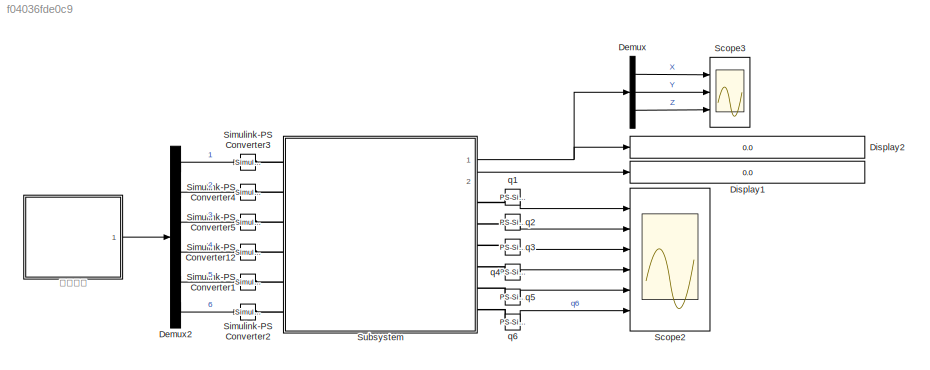
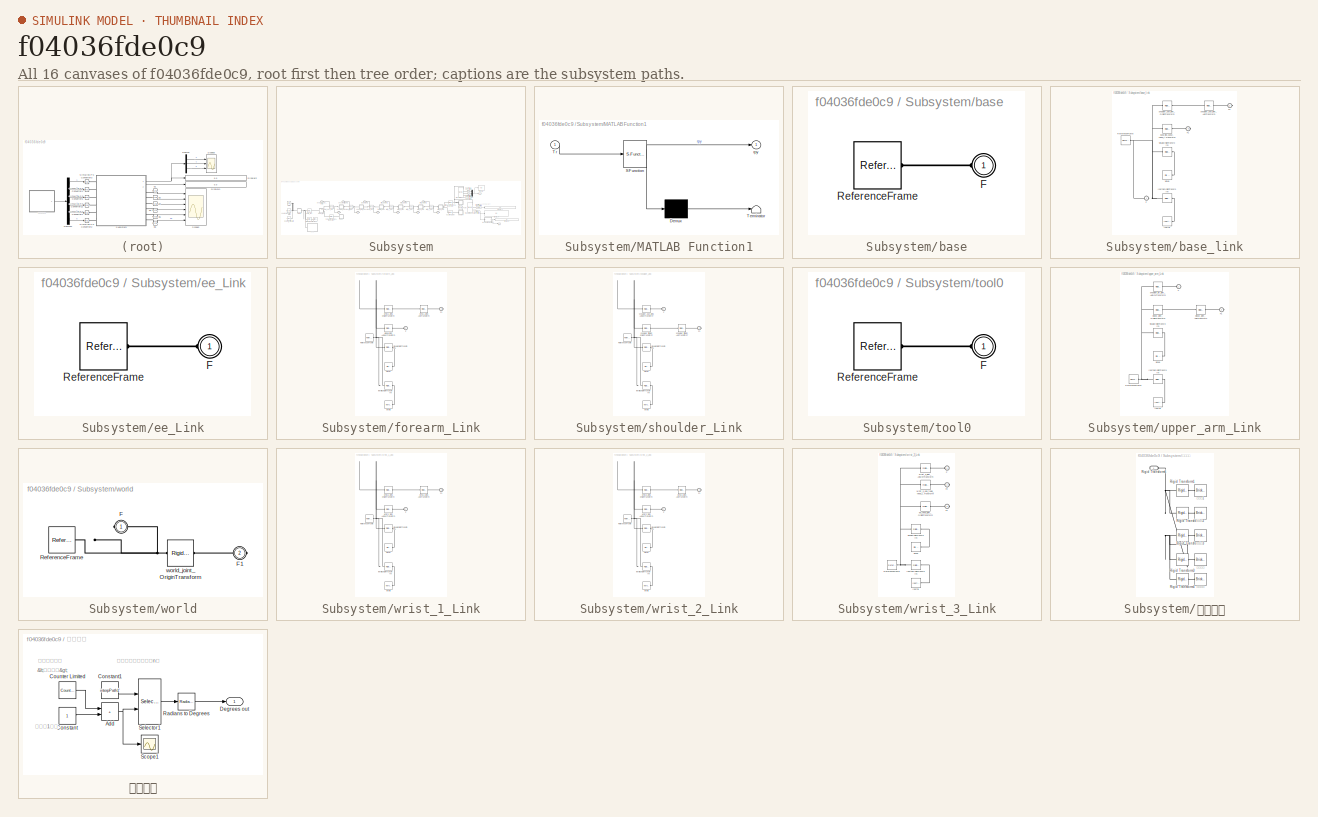
[diagram: thumbnail index - all 16 canvases of the model, root first then tree order]
MODEL slx_f04036fde0c9
KIND model
CONFIG AbsTol = auto
CONFIG EnableMultiTasking = off
CONFIG FixedStep = auto
CONFIG MaxStep = auto
CONFIG MinStep = auto
CONFIG RelTol = 1e-3
CONFIG SampleTimeConstraint = Unconstrained
CONFIG SolverName = VariableStepAuto
CONFIG StartTime = 0.0
CONFIG StopTime = 100
BLOCK [Demux] Demux
  Outputs = 3
  Ports = [1, 3]
BLOCK [Demux] Demux2
  Outputs = 6
  Ports = [1, 6]
BLOCK [Display] Display1
  Decimation = 1
  Format = bank
  Ports = [1]
BLOCK [Display] Display2
  Decimation = 1
  Format = bank
  Ports = [1]
BLOCK [Scope] Scope2
  Floating = off
  NumInputPorts = 6
  Ports = [6]
  ScopeSpecificationString = Simulink.scopes.TimeScopeBlockCfg('CurrentConfiguration', extmgr.ConfigurationSet(extmgr.Configuration('Core','General UI',true),extmgr.Configuration('Core','Source UI',true),extmgr.Configuration('Sources','WiredSimulink',true,'DataLoggingVariableName','ScopeData1'),extmgr.Configuration('Visuals','Time Domain',true,'SerializedDisplays',{struct('MinYLimReal','-175.51527','MaxYLimReal','164.04343','...<+1459ch>
BLOCK [Scope] Scope3
  Floating = off
  NumInputPorts = 3
  Ports = [3]
  ScopeSpecificationString = Simulink.scopes.TimeScopeBlockCfg('CurrentConfiguration', extmgr.ConfigurationSet(extmgr.Configuration('Core','General UI',true),extmgr.Configuration('Core','Source UI',true),extmgr.Configuration('Sources','WiredSimulink',true,'DataLoggingVariableName','ScopeData1'),extmgr.Configuration('Visuals','Time Domain',true,'SerializedDisplays',{struct('MinYLimReal','-398.09495','MaxYLimReal','919.23277','...<+1484ch>
BLOCK [Reference] Simulink-PS Converter1  REF=nesl_utility/Simulink-PS
Converter
  Ports = [1, 0, 0, 0, 0, 0, 1]
  SourceBlock = nesl_utility/Simulink-PS\nConverter
  SourceProductBaseCode = SS
  SourceType = Simulink-PS\nConverter
BLOCK [Reference] Simulink-PS Converter12  REF=nesl_utility/Simulink-PS
Converter
  Ports = [1, 0, 0, 0, 0, 0, 1]
  SourceBlock = nesl_utility/Simulink-PS\nConverter
  SourceProductBaseCode = SS
  SourceType = Simulink-PS\nConverter
BLOCK [Reference] Simulink-PS Converter2  REF=nesl_utility/Simulink-PS
Converter
  Ports = [1, 0, 0, 0, 0, 0, 1]
  SourceBlock = nesl_utility/Simulink-PS\nConverter
  SourceProductBaseCode = SS
  SourceType = Simulink-PS\nConverter
BLOCK [Reference] Simulink-PS Converter3  REF=nesl_utility/Simulink-PS
Converter
  Ports = [1, 0, 0, 0, 0, 0, 1]
  SourceBlock = nesl_utility/Simulink-PS\nConverter
  SourceProductBaseCode = SS
  SourceType = Simulink-PS\nConverter
BLOCK [Reference] Simulink-PS Converter4  REF=nesl_utility/Simulink-PS
Converter
  Ports = [1, 0, 0, 0, 0, 0, 1]
  SourceBlock = nesl_utility/Simulink-PS\nConverter
  SourceProductBaseCode = SS
  SourceType = Simulink-PS\nConverter
BLOCK [Reference] Simulink-PS Converter5  REF=nesl_utility/Simulink-PS
Converter
  Ports = [1, 0, 0, 0, 0, 0, 1]
  SourceBlock = nesl_utility/Simulink-PS\nConverter
  SourceProductBaseCode = SS
  SourceType = Simulink-PS\nConverter
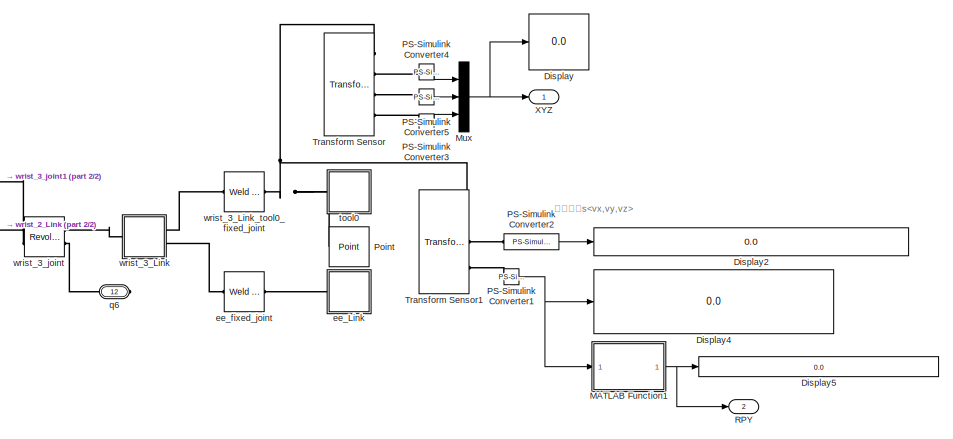
[diagram: Subsystem - part 1/2, right side, full height]
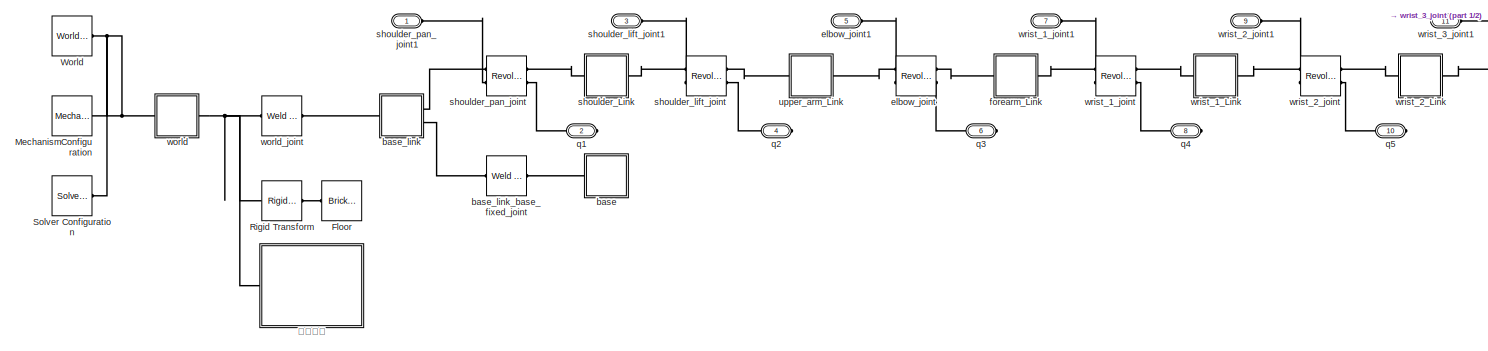
[diagram: Subsystem - part 2/2, middle left region]
BLOCK [SubSystem] Subsystem
  Ports = [0, 2, 0, 0, 0, 6, 6]
  RequestExecContextInheritance = off
BLOCK [Display] Subsystem/Display
  Decimation = 1
  Format = bank
  Ports = [1]
BLOCK [Display] Subsystem/Display2
  Decimation = 1
  Format = bank
  Ports = [1]
BLOCK [Display] Subsystem/Display4
  Decimation = 1
  Format = bank
  Ports = [1]
BLOCK [Display] Subsystem/Display5
  Decimation = 1
  Format = bank
  Ports = [1]
BLOCK [Reference] Subsystem/Floor  REF=sm_lib/Body Elements/Brick Solid
  NameLocation = top
  Ports = [0, 0, 0, 0, 0, 0, 1]
  SourceBlock = sm_lib/Body Elements/Brick Solid
  SourceProductBaseCode = MS
  SourceType = Brick Solid
BLOCK [SubSystem] Subsystem/MATLAB Function1
  ErrorFcn = Stateflow.Translate.translate
  PermitHierarchicalResolution = ExplicitOnly
  Ports = [1, 1]
  RequestExecContextInheritance = off
  SFBlockType = MATLAB Function
  TreatAsAtomicUnit = on
BLOCK [Demux] Subsystem/MATLAB Function1/ Demux 
  Outputs = 1
  Ports = [1, 1]
BLOCK [S-Function] Subsystem/MATLAB Function1/ SFunction 
  EnableBusSupport = on
  FunctionName = sf_sfun
  PortCounts = [1 2]
  Ports = [1, 2]
  SFcnIsStateOwnerBlock = off
  SFunctionDeploymentMode = off
  Tag = Stateflow S-Function 2
BLOCK [Terminator] Subsystem/MATLAB Function1/ Terminator 
BLOCK [Inport] Subsystem/MATLAB Function1/Tr
BLOCK [Outport] Subsystem/MATLAB Function1/rpy
BLOCK [Reference] Subsystem/MechanismConfiguration  REF=sm_lib/Utilities/Mechanism
Configuration
  Ports = [0, 0, 0, 0, 0, 0, 1]
  SourceBlock = sm_lib/Utilities/Mechanism\nConfiguration
  SourceProductBaseCode = MS
  SourceType = Mechanism\nConfiguration
BLOCK [Mux] Subsystem/Mux
  DisplayOption = bar
  Inputs = 3
  Ports = [3, 1]
BLOCK [Reference] Subsystem/PS-Simulink Converter1  REF=nesl_utility/PS-Simulink
Converter
  Ports = [0, 1, 0, 0, 0, 1]
  SourceBlock = nesl_utility/PS-Simulink\nConverter
  SourceProductBaseCode = SS
  SourceType = PS-Simulink\nConverter
BLOCK [Reference] Subsystem/PS-Simulink Converter2  REF=nesl_utility/PS-Simulink
Converter
  Ports = [0, 1, 0, 0, 0, 1]
  SourceBlock = nesl_utility/PS-Simulink\nConverter
  SourceProductBaseCode = SS
  SourceType = PS-Simulink\nConverter
BLOCK [Reference] Subsystem/PS-Simulink Converter3  REF=nesl_utility/PS-Simulink
Converter
  Ports = [0, 1, 0, 0, 0, 1]
  SourceBlock = nesl_utility/PS-Simulink\nConverter
  SourceProductBaseCode = SS
  SourceType = PS-Simulink\nConverter
BLOCK [Reference] Subsystem/PS-Simulink Converter4  REF=nesl_utility/PS-Simulink
Converter
  Ports = [0, 1, 0, 0, 0, 1]
  SourceBlock = nesl_utility/PS-Simulink\nConverter
  SourceProductBaseCode = SS
  SourceType = PS-Simulink\nConverter
BLOCK [Reference] Subsystem/PS-Simulink Converter5  REF=nesl_utility/PS-Simulink
Converter
  Ports = [0, 1, 0, 0, 0, 1]
  SourceBlock = nesl_utility/PS-Simulink\nConverter
  SourceProductBaseCode = SS
  SourceType = PS-Simulink\nConverter
BLOCK [Reference] Subsystem/Point  REF=sm_lib/Curves and Surfaces/Point
  Ports = [0, 0, 0, 0, 0, 1, 1]
  SourceBlock = sm_lib/Curves and Surfaces/Point
  SourceProductBaseCode = MS
  SourceType = Point
BLOCK [Outport] Subsystem/RPY
  Port = 2
BLOCK [Reference] Subsystem/Rigid Transform  REF=sm_lib/Frames and
Transforms/Rigid
Transform
  Ports = [0, 0, 0, 0, 0, 1, 1]
  SourceBlock = sm_lib/Frames and\nTransforms/Rigid\nTransform
  SourceProductBaseCode = MS
  SourceType = Rigid\nTransform
BLOCK [Reference] Subsystem/Solver Configuration  REF=nesl_utility/Solver
Configuration
  Ports = [0, 0, 0, 0, 0, 0, 1]
  SourceBlock = nesl_utility/Solver\nConfiguration
  SourceProductBaseCode = SS
  SourceType = Solver\nConfiguration
BLOCK [Reference] Subsystem/Transform Sensor  REF=sm_lib/Frames and
Transforms/Transform
Sensor
  Ports = [0, 0, 0, 0, 0, 1, 4]
  SourceBlock = sm_lib/Frames and\nTransforms/Transform\nSensor
  SourceProductBaseCode = MS
  SourceType = Transform\nSensor
BLOCK [Reference] Subsystem/Transform Sensor1  REF=sm_lib/Frames and
Transforms/Transform
Sensor
  Ports = [0, 0, 0, 0, 0, 1, 3]
  SourceBlock = sm_lib/Frames and\nTransforms/Transform\nSensor
  SourceProductBaseCode = MS
  SourceType = Transform\nSensor
BLOCK [Reference] Subsystem/World  REF=sm_lib/Frames and
Transforms/World Frame
  Ports = [0, 0, 0, 0, 0, 0, 1]
  SourceBlock = sm_lib/Frames and\nTransforms/World Frame
  SourceProductBaseCode = MS
  SourceType = World Frame
BLOCK [Outport] Subsystem/XYZ 
  VectorParamsAs1DForOutWhenUnconnected = off
BLOCK [SubSystem] Subsystem/base
  Ports = [0, 0, 0, 0, 0, 1]
  RequestExecContextInheritance = off
BLOCK [PMIOPort] Subsystem/base/F
  Side = Left
BLOCK [Reference] Subsystem/base/ReferenceFrame  REF=sm_lib/Frames and
Transforms/Reference
Frame
  Ports = [0, 0, 0, 0, 0, 0, 1]
  SourceBlock = sm_lib/Frames and\nTransforms/Reference\nFrame
  SourceProductBaseCode = MS
  SourceType = Reference\nFrame
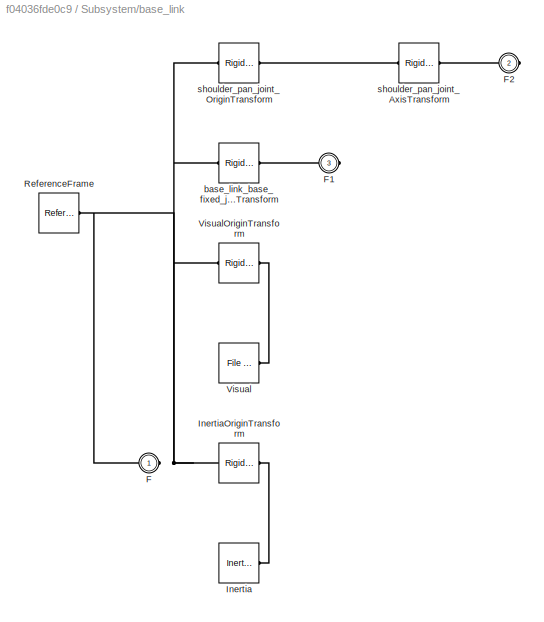
BLOCK [SubSystem] Subsystem/base_link
  Ports = [0, 0, 0, 0, 0, 1, 2]
  RequestExecContextInheritance = off
BLOCK [PMIOPort] Subsystem/base_link/F
  Side = Left
BLOCK [PMIOPort] Subsystem/base_link/F1
  Port = 3
  Side = Right
BLOCK [PMIOPort] Subsystem/base_link/F2
  Port = 2
  Side = Right
BLOCK [Reference] Subsystem/base_link/Inertia  REF=sm_lib/Body Elements/Inertia
  Ports = [0, 0, 0, 0, 0, 0, 1]
  SourceBlock = sm_lib/Body Elements/Inertia
  SourceProductBaseCode = MS
  SourceType = Inertia
BLOCK [Reference] Subsystem/base_link/InertiaOriginTransform  REF=sm_lib/Frames and
Transforms/Rigid
Transform
  Ports = [0, 0, 0, 0, 0, 1, 1]
  SourceBlock = sm_lib/Frames and\nTransforms/Rigid\nTransform
  SourceProductBaseCode = MS
  SourceType = Rigid\nTransform
BLOCK [Reference] Subsystem/base_link/ReferenceFrame  REF=sm_lib/Frames and
Transforms/Reference
Frame
  Ports = [0, 0, 0, 0, 0, 0, 1]
  SourceBlock = sm_lib/Frames and\nTransforms/Reference\nFrame
  SourceProductBaseCode = MS
  SourceType = Reference\nFrame
BLOCK [Reference] Subsystem/base_link/Visual  REF=sm_lib/Body Elements/File Solid
  Ports = [0, 0, 0, 0, 0, 0, 1]
  SourceBlock = sm_lib/Body Elements/File Solid
  SourceProductBaseCode = MS
  SourceType = File Solid
BLOCK [Reference] Subsystem/base_link/VisualOriginTransform  REF=sm_lib/Frames and
Transforms/Rigid
Transform
  Ports = [0, 0, 0, 0, 0, 1, 1]
  SourceBlock = sm_lib/Frames and\nTransforms/Rigid\nTransform
  SourceProductBaseCode = MS
  SourceType = Rigid\nTransform
BLOCK [Reference] Subsystem/base_link/base_link_base_fixed_joint_OriginTransform  REF=sm_lib/Frames and
Transforms/Rigid
Transform
  Ports = [0, 0, 0, 0, 0, 1, 1]
  SourceBlock = sm_lib/Frames and\nTransforms/Rigid\nTransform
  SourceProductBaseCode = MS
  SourceType = Rigid\nTransform
BLOCK [Reference] Subsystem/base_link/shoulder_pan_joint_AxisTransform  REF=sm_lib/Frames and
Transforms/Rigid
Transform
  Ports = [0, 0, 0, 0, 0, 1, 1]
  SourceBlock = sm_lib/Frames and\nTransforms/Rigid\nTransform
  SourceProductBaseCode = MS
  SourceType = Rigid\nTransform
BLOCK [Reference] Subsystem/base_link/shoulder_pan_joint_OriginTransform  REF=sm_lib/Frames and
Transforms/Rigid
Transform
  Ports = [0, 0, 0, 0, 0, 1, 1]
  SourceBlock = sm_lib/Frames and\nTransforms/Rigid\nTransform
  SourceProductBaseCode = MS
  SourceType = Rigid\nTransform
BLOCK [Reference] Subsystem/base_link_base_fixed_joint  REF=sm_lib/Joints/Weld Joint
  Ports = [0, 0, 0, 0, 0, 1, 1]
  SourceBlock = sm_lib/Joints/Weld Joint
  SourceProductBaseCode = MS
  SourceType = Weld Joint
BLOCK [SubSystem] Subsystem/ee_Link
  Ports = [0, 0, 0, 0, 0, 1]
  RequestExecContextInheritance = off
BLOCK [PMIOPort] Subsystem/ee_Link/F
  Side = Left
BLOCK [Reference] Subsystem/ee_Link/ReferenceFrame  REF=sm_lib/Frames and
Transforms/Reference
Frame
  Ports = [0, 0, 0, 0, 0, 0, 1]
  SourceBlock = sm_lib/Frames and\nTransforms/Reference\nFrame
  SourceProductBaseCode = MS
  SourceType = Reference\nFrame
BLOCK [Reference] Subsystem/ee_fixed_joint  REF=sm_lib/Joints/Weld Joint
  Ports = [0, 0, 0, 0, 0, 1, 1]
  SourceBlock = sm_lib/Joints/Weld Joint
  SourceProductBaseCode = MS
  SourceType = Weld Joint
BLOCK [Reference] Subsystem/elbow_joint  REF=sm_lib/Joints/Revolute Joint
  Ports = [0, 0, 0, 0, 0, 2, 2]
  SourceBlock = sm_lib/Joints/Revolute Joint
  SourceProductBaseCode = MS
  SourceType = Revolute Joint
BLOCK [PMIOPort] Subsystem/elbow_joint1
  Port = 5
  Side = Left
BLOCK [SubSystem] Subsystem/forearm_Link
  Ports = [0, 0, 0, 0, 0, 1, 1]
  RequestExecContextInheritance = off
BLOCK [PMIOPort] Subsystem/forearm_Link/F
  Side = Left
BLOCK [PMIOPort] Subsystem/forearm_Link/F1
  Port = 2
  Side = Right
BLOCK [Reference] Subsystem/forearm_Link/Inertia  REF=sm_lib/Body Elements/Inertia
  Ports = [0, 0, 0, 0, 0, 0, 1]
  SourceBlock = sm_lib/Body Elements/Inertia
  SourceProductBaseCode = MS
  SourceType = Inertia
BLOCK [Reference] Subsystem/forearm_Link/InertiaOriginTransform  REF=sm_lib/Frames and
Transforms/Rigid
Transform
  Ports = [0, 0, 0, 0, 0, 1, 1]
  SourceBlock = sm_lib/Frames and\nTransforms/Rigid\nTransform
  SourceProductBaseCode = MS
  SourceType = Rigid\nTransform
BLOCK [Reference] Subsystem/forearm_Link/ReferenceFrame  REF=sm_lib/Frames and
Transforms/Reference
Frame
  Ports = [0, 0, 0, 0, 0, 0, 1]
  SourceBlock = sm_lib/Frames and\nTransforms/Reference\nFrame
  SourceProductBaseCode = MS
  SourceType = Reference\nFrame
BLOCK [Reference] Subsystem/forearm_Link/Visual  REF=sm_lib/Body Elements/File Solid
  Ports = [0, 0, 0, 0, 0, 0, 1]
  SourceBlock = sm_lib/Body Elements/File Solid
  SourceProductBaseCode = MS
  SourceType = File Solid
BLOCK [Reference] Subsystem/forearm_Link/VisualOriginTransform  REF=sm_lib/Frames and
Transforms/Rigid
Transform
  Ports = [0, 0, 0, 0, 0, 1, 1]
  SourceBlock = sm_lib/Frames and\nTransforms/Rigid\nTransform
  SourceProductBaseCode = MS
  SourceType = Rigid\nTransform
BLOCK [Reference] Subsystem/forearm_Link/elbow_joint_AxisInvTransform  REF=sm_lib/Frames and
Transforms/Rigid
Transform
  Ports = [0, 0, 0, 0, 0, 1, 1]
  SourceBlock = sm_lib/Frames and\nTransforms/Rigid\nTransform
  SourceProductBaseCode = MS
  SourceType = Rigid\nTransform
BLOCK [Reference] Subsystem/forearm_Link/wrist_1_joint_AxisTransform  REF=sm_lib/Frames and
Transforms/Rigid
Transform
  Ports = [0, 0, 0, 0, 0, 1, 1]
  SourceBlock = sm_lib/Frames and\nTransforms/Rigid\nTransform
  SourceProductBaseCode = MS
  SourceType = Rigid\nTransform
BLOCK [Reference] Subsystem/forearm_Link/wrist_1_joint_OriginTransform  REF=sm_lib/Frames and
Transforms/Rigid
Transform
  Ports = [0, 0, 0, 0, 0, 1, 1]
  SourceBlock = sm_lib/Frames and\nTransforms/Rigid\nTransform
  SourceProductBaseCode = MS
  SourceType = Rigid\nTransform
BLOCK [PMIOPort] Subsystem/q1
  Port = 2
  Side = Right
BLOCK [PMIOPort] Subsystem/q2
  Port = 4
  Side = Right
BLOCK [PMIOPort] Subsystem/q3
  Port = 6
  Side = Right
BLOCK [PMIOPort] Subsystem/q4
  Port = 8
  Side = Right
BLOCK [PMIOPort] Subsystem/q5
  Port = 10
  Side = Right
BLOCK [PMIOPort] Subsystem/q6
  Port = 12
  Side = Right
BLOCK [SubSystem] Subsystem/shoulder_Link
  Ports = [0, 0, 0, 0, 0, 1, 1]
  RequestExecContextInheritance = off
BLOCK [PMIOPort] Subsystem/shoulder_Link/F
  Side = Left
BLOCK [PMIOPort] Subsystem/shoulder_Link/F1
  Port = 2
  Side = Right
BLOCK [Reference] Subsystem/shoulder_Link/Inertia  REF=sm_lib/Body Elements/Inertia
  Ports = [0, 0, 0, 0, 0, 0, 1]
  SourceBlock = sm_lib/Body Elements/Inertia
  SourceProductBaseCode = MS
  SourceType = Inertia
BLOCK [Reference] Subsystem/shoulder_Link/InertiaOriginTransform  REF=sm_lib/Frames and
Transforms/Rigid
Transform
  Ports = [0, 0, 0, 0, 0, 1, 1]
  SourceBlock = sm_lib/Frames and\nTransforms/Rigid\nTransform
  SourceProductBaseCode = MS
  SourceType = Rigid\nTransform
BLOCK [Reference] Subsystem/shoulder_Link/ReferenceFrame  REF=sm_lib/Frames and
Transforms/Reference
Frame
  Ports = [0, 0, 0, 0, 0, 0, 1]
  SourceBlock = sm_lib/Frames and\nTransforms/Reference\nFrame
  SourceProductBaseCode = MS
  SourceType = Reference\nFrame
BLOCK [Reference] Subsystem/shoulder_Link/Visual  REF=sm_lib/Body Elements/File Solid
  Ports = [0, 0, 0, 0, 0, 0, 1]
  SourceBlock = sm_lib/Body Elements/File Solid
  SourceProductBaseCode = MS
  SourceType = File Solid
BLOCK [Reference] Subsystem/shoulder_Link/VisualOriginTransform  REF=sm_lib/Frames and
Transforms/Rigid
Transform
  Ports = [0, 0, 0, 0, 0, 1, 1]
  SourceBlock = sm_lib/Frames and\nTransforms/Rigid\nTransform
  SourceProductBaseCode = MS
  SourceType = Rigid\nTransform
BLOCK [Reference] Subsystem/shoulder_Link/shoulder_lift_joint_AxisTransform  REF=sm_lib/Frames and
Transforms/Rigid
Transform
  Ports = [0, 0, 0, 0, 0, 1, 1]
  SourceBlock = sm_lib/Frames and\nTransforms/Rigid\nTransform
  SourceProductBaseCode = MS
  SourceType = Rigid\nTransform
BLOCK [Reference] Subsystem/shoulder_Link/shoulder_lift_joint_OriginTransform  REF=sm_lib/Frames and
Transforms/Rigid
Transform
  Ports = [0, 0, 0, 0, 0, 1, 1]
  SourceBlock = sm_lib/Frames and\nTransforms/Rigid\nTransform
  SourceProductBaseCode = MS
  SourceType = Rigid\nTransform
BLOCK [Reference] Subsystem/shoulder_Link/shoulder_pan_joint_AxisInvTransform  REF=sm_lib/Frames and
Transforms/Rigid
Transform
  Ports = [0, 0, 0, 0, 0, 1, 1]
  SourceBlock = sm_lib/Frames and\nTransforms/Rigid\nTransform
  SourceProductBaseCode = MS
  SourceType = Rigid\nTransform
BLOCK [Reference] Subsystem/shoulder_lift_joint  REF=sm_lib/Joints/Revolute Joint
  Ports = [0, 0, 0, 0, 0, 2, 2]
  SourceBlock = sm_lib/Joints/Revolute Joint
  SourceProductBaseCode = MS
  SourceType = Revolute Joint
BLOCK [PMIOPort] Subsystem/shoulder_lift_joint1
  Port = 3
  Side = Left
BLOCK [Reference] Subsystem/shoulder_pan_joint  REF=sm_lib/Joints/Revolute Joint
  Ports = [0, 0, 0, 0, 0, 2, 2]
  SourceBlock = sm_lib/Joints/Revolute Joint
  SourceProductBaseCode = MS
  SourceType = Revolute Joint
BLOCK [PMIOPort] Subsystem/shoulder_pan_joint1
  Side = Left
BLOCK [SubSystem] Subsystem/tool0
  Ports = [0, 0, 0, 0, 0, 1]
  RequestExecContextInheritance = off
BLOCK [PMIOPort] Subsystem/tool0/F
  Side = Left
BLOCK [Reference] Subsystem/tool0/ReferenceFrame  REF=sm_lib/Frames and
Transforms/Reference
Frame
  Ports = [0, 0, 0, 0, 0, 0, 1]
  SourceBlock = sm_lib/Frames and\nTransforms/Reference\nFrame
  SourceProductBaseCode = MS
  SourceType = Reference\nFrame
BLOCK [SubSystem] Subsystem/upper_arm_Link
  Ports = [0, 0, 0, 0, 0, 1, 1]
  RequestExecContextInheritance = off
BLOCK [PMIOPort] Subsystem/upper_arm_Link/F
  Side = Left
BLOCK [PMIOPort] Subsystem/upper_arm_Link/F1
  Port = 2
  Side = Right
BLOCK [Reference] Subsystem/upper_arm_Link/Inertia  REF=sm_lib/Body Elements/Inertia
  Ports = [0, 0, 0, 0, 0, 0, 1]
  SourceBlock = sm_lib/Body Elements/Inertia
  SourceProductBaseCode = MS
  SourceType = Inertia
BLOCK [Reference] Subsystem/upper_arm_Link/InertiaOriginTransform  REF=sm_lib/Frames and
Transforms/Rigid
Transform
  Ports = [0, 0, 0, 0, 0, 1, 1]
  SourceBlock = sm_lib/Frames and\nTransforms/Rigid\nTransform
  SourceProductBaseCode = MS
  SourceType = Rigid\nTransform
BLOCK [Reference] Subsystem/upper_arm_Link/ReferenceFrame  REF=sm_lib/Frames and
Transforms/Reference
Frame
  Ports = [0, 0, 0, 0, 0, 0, 1]
  SourceBlock = sm_lib/Frames and\nTransforms/Reference\nFrame
  SourceProductBaseCode = MS
  SourceType = Reference\nFrame
BLOCK [Reference] Subsystem/upper_arm_Link/Visual  REF=sm_lib/Body Elements/File Solid
  Ports = [0, 0, 0, 0, 0, 0, 1]
  SourceBlock = sm_lib/Body Elements/File Solid
  SourceProductBaseCode = MS
  SourceType = File Solid
BLOCK [Reference] Subsystem/upper_arm_Link/VisualOriginTransform  REF=sm_lib/Frames and
Transforms/Rigid
Transform
  Ports = [0, 0, 0, 0, 0, 1, 1]
  SourceBlock = sm_lib/Frames and\nTransforms/Rigid\nTransform
  SourceProductBaseCode = MS
  SourceType = Rigid\nTransform
BLOCK [Reference] Subsystem/upper_arm_Link/elbow_joint_AxisTransform  REF=sm_lib/Frames and
Transforms/Rigid
Transform
  Ports = [0, 0, 0, 0, 0, 1, 1]
  SourceBlock = sm_lib/Frames and\nTransforms/Rigid\nTransform
  SourceProductBaseCode = MS
  SourceType = Rigid\nTransform
BLOCK [Reference] Subsystem/upper_arm_Link/elbow_joint_OriginTransform  REF=sm_lib/Frames and
Transforms/Rigid
Transform
  Ports = [0, 0, 0, 0, 0, 1, 1]
  SourceBlock = sm_lib/Frames and\nTransforms/Rigid\nTransform
  SourceProductBaseCode = MS
  SourceType = Rigid\nTransform
BLOCK [Reference] Subsystem/upper_arm_Link/shoulder_lift_joint_AxisInvTransform  REF=sm_lib/Frames and
Transforms/Rigid
Transform
  Ports = [0, 0, 0, 0, 0, 1, 1]
  SourceBlock = sm_lib/Frames and\nTransforms/Rigid\nTransform
  SourceProductBaseCode = MS
  SourceType = Rigid\nTransform
BLOCK [SubSystem] Subsystem/world
  Ports = [0, 0, 0, 0, 0, 1, 1]
  RequestExecContextInheritance = off
BLOCK [PMIOPort] Subsystem/world/F
  Side = Left
BLOCK [PMIOPort] Subsystem/world/F1
  Port = 2
  Side = Right
BLOCK [Reference] Subsystem/world/ReferenceFrame  REF=sm_lib/Frames and
Transforms/Reference
Frame
  Ports = [0, 0, 0, 0, 0, 0, 1]
  SourceBlock = sm_lib/Frames and\nTransforms/Reference\nFrame
  SourceProductBaseCode = MS
  SourceType = Reference\nFrame
BLOCK [Reference] Subsystem/world/world_joint_OriginTransform  REF=sm_lib/Frames and
Transforms/Rigid
Transform
  Ports = [0, 0, 0, 0, 0, 1, 1]
  SourceBlock = sm_lib/Frames and\nTransforms/Rigid\nTransform
  SourceProductBaseCode = MS
  SourceType = Rigid\nTransform
BLOCK [Reference] Subsystem/world_joint  REF=sm_lib/Joints/Weld Joint
  Ports = [0, 0, 0, 0, 0, 1, 1]
  SourceBlock = sm_lib/Joints/Weld Joint
  SourceProductBaseCode = MS
  SourceType = Weld Joint
BLOCK [SubSystem] Subsystem/wrist_1_Link
  Ports = [0, 0, 0, 0, 0, 1, 1]
  RequestExecContextInheritance = off
BLOCK [PMIOPort] Subsystem/wrist_1_Link/F
  Side = Left
BLOCK [PMIOPort] Subsystem/wrist_1_Link/F1
  Port = 2
  Side = Right
BLOCK [Reference] Subsystem/wrist_1_Link/Inertia  REF=sm_lib/Body Elements/Inertia
  Ports = [0, 0, 0, 0, 0, 0, 1]
  SourceBlock = sm_lib/Body Elements/Inertia
  SourceProductBaseCode = MS
  SourceType = Inertia
BLOCK [Reference] Subsystem/wrist_1_Link/InertiaOriginTransform  REF=sm_lib/Frames and
Transforms/Rigid
Transform
  Ports = [0, 0, 0, 0, 0, 1, 1]
  SourceBlock = sm_lib/Frames and\nTransforms/Rigid\nTransform
  SourceProductBaseCode = MS
  SourceType = Rigid\nTransform
BLOCK [Reference] Subsystem/wrist_1_Link/ReferenceFrame  REF=sm_lib/Frames and
Transforms/Reference
Frame
  Ports = [0, 0, 0, 0, 0, 0, 1]
  SourceBlock = sm_lib/Frames and\nTransforms/Reference\nFrame
  SourceProductBaseCode = MS
  SourceType = Reference\nFrame
BLOCK [Reference] Subsystem/wrist_1_Link/Visual  REF=sm_lib/Body Elements/File Solid
  Ports = [0, 0, 0, 0, 0, 0, 1]
  SourceBlock = sm_lib/Body Elements/File Solid
  SourceProductBaseCode = MS
  SourceType = File Solid
BLOCK [Reference] Subsystem/wrist_1_Link/VisualOriginTransform  REF=sm_lib/Frames and
Transforms/Rigid
Transform
  Ports = [0, 0, 0, 0, 0, 1, 1]
  SourceBlock = sm_lib/Frames and\nTransforms/Rigid\nTransform
  SourceProductBaseCode = MS
  SourceType = Rigid\nTransform
BLOCK [Reference] Subsystem/wrist_1_Link/wrist_1_joint_AxisInvTransform  REF=sm_lib/Frames and
Transforms/Rigid
Transform
  Ports = [0, 0, 0, 0, 0, 1, 1]
  SourceBlock = sm_lib/Frames and\nTransforms/Rigid\nTransform
  SourceProductBaseCode = MS
  SourceType = Rigid\nTransform
BLOCK [Reference] Subsystem/wrist_1_Link/wrist_2_joint_AxisTransform  REF=sm_lib/Frames and
Transforms/Rigid
Transform
  Ports = [0, 0, 0, 0, 0, 1, 1]
  SourceBlock = sm_lib/Frames and\nTransforms/Rigid\nTransform
  SourceProductBaseCode = MS
  SourceType = Rigid\nTransform
BLOCK [Reference] Subsystem/wrist_1_Link/wrist_2_joint_OriginTransform  REF=sm_lib/Frames and
Transforms/Rigid
Transform
  Ports = [0, 0, 0, 0, 0, 1, 1]
  SourceBlock = sm_lib/Frames and\nTransforms/Rigid\nTransform
  SourceProductBaseCode = MS
  SourceType = Rigid\nTransform
BLOCK [Reference] Subsystem/wrist_1_joint  REF=sm_lib/Joints/Revolute Joint
  Ports = [0, 0, 0, 0, 0, 2, 2]
  SourceBlock = sm_lib/Joints/Revolute Joint
  SourceProductBaseCode = MS
  SourceType = Revolute Joint
BLOCK [PMIOPort] Subsystem/wrist_1_joint1
  Port = 7
  Side = Left
BLOCK [SubSystem] Subsystem/wrist_2_Link
  Ports = [0, 0, 0, 0, 0, 1, 1]
  RequestExecContextInheritance = off
BLOCK [PMIOPort] Subsystem/wrist_2_Link/F
  Side = Left
BLOCK [PMIOPort] Subsystem/wrist_2_Link/F1
  Port = 2
  Side = Right
BLOCK [Reference] Subsystem/wrist_2_Link/Inertia  REF=sm_lib/Body Elements/Inertia
  Ports = [0, 0, 0, 0, 0, 0, 1]
  SourceBlock = sm_lib/Body Elements/Inertia
  SourceProductBaseCode = MS
  SourceType = Inertia
BLOCK [Reference] Subsystem/wrist_2_Link/InertiaOriginTransform  REF=sm_lib/Frames and
Transforms/Rigid
Transform
  Ports = [0, 0, 0, 0, 0, 1, 1]
  SourceBlock = sm_lib/Frames and\nTransforms/Rigid\nTransform
  SourceProductBaseCode = MS
  SourceType = Rigid\nTransform
BLOCK [Reference] Subsystem/wrist_2_Link/ReferenceFrame  REF=sm_lib/Frames and
Transforms/Reference
Frame
  Ports = [0, 0, 0, 0, 0, 0, 1]
  SourceBlock = sm_lib/Frames and\nTransforms/Reference\nFrame
  SourceProductBaseCode = MS
  SourceType = Reference\nFrame
BLOCK [Reference] Subsystem/wrist_2_Link/Visual  REF=sm_lib/Body Elements/File Solid
  Ports = [0, 0, 0, 0, 0, 0, 1]
  SourceBlock = sm_lib/Body Elements/File Solid
  SourceProductBaseCode = MS
  SourceType = File Solid
BLOCK [Reference] Subsystem/wrist_2_Link/VisualOriginTransform  REF=sm_lib/Frames and
Transforms/Rigid
Transform
  Ports = [0, 0, 0, 0, 0, 1, 1]
  SourceBlock = sm_lib/Frames and\nTransforms/Rigid\nTransform
  SourceProductBaseCode = MS
  SourceType = Rigid\nTransform
BLOCK [Reference] Subsystem/wrist_2_Link/wrist_2_joint_AxisInvTransform  REF=sm_lib/Frames and
Transforms/Rigid
Transform
  Ports = [0, 0, 0, 0, 0, 1, 1]
  SourceBlock = sm_lib/Frames and\nTransforms/Rigid\nTransform
  SourceProductBaseCode = MS
  SourceType = Rigid\nTransform
BLOCK [Reference] Subsystem/wrist_2_Link/wrist_3_joint_AxisTransform  REF=sm_lib/Frames and
Transforms/Rigid
Transform
  Ports = [0, 0, 0, 0, 0, 1, 1]
  SourceBlock = sm_lib/Frames and\nTransforms/Rigid\nTransform
  SourceProductBaseCode = MS
  SourceType = Rigid\nTransform
BLOCK [Reference] Subsystem/wrist_2_Link/wrist_3_joint_OriginTransform  REF=sm_lib/Frames and
Transforms/Rigid
Transform
  Ports = [0, 0, 0, 0, 0, 1, 1]
  SourceBlock = sm_lib/Frames and\nTransforms/Rigid\nTransform
  SourceProductBaseCode = MS
  SourceType = Rigid\nTransform
BLOCK [Reference] Subsystem/wrist_2_joint  REF=sm_lib/Joints/Revolute Joint
  Ports = [0, 0, 0, 0, 0, 2, 2]
  SourceBlock = sm_lib/Joints/Revolute Joint
  SourceProductBaseCode = MS
  SourceType = Revolute Joint
BLOCK [PMIOPort] Subsystem/wrist_2_joint1
  Port = 9
  Side = Left
BLOCK [SubSystem] Subsystem/wrist_3_Link
  Ports = [0, 0, 0, 0, 0, 1, 2]
  RequestExecContextInheritance = off
BLOCK [PMIOPort] Subsystem/wrist_3_Link/F
  Side = Left
BLOCK [PMIOPort] Subsystem/wrist_3_Link/F1
  Port = 3
  Side = Right
BLOCK [PMIOPort] Subsystem/wrist_3_Link/F2
  Port = 2
  Side = Right
BLOCK [Reference] Subsystem/wrist_3_Link/Inertia  REF=sm_lib/Body Elements/Inertia
  Ports = [0, 0, 0, 0, 0, 0, 1]
  SourceBlock = sm_lib/Body Elements/Inertia
  SourceProductBaseCode = MS
  SourceType = Inertia
BLOCK [Reference] Subsystem/wrist_3_Link/InertiaOriginTransform  REF=sm_lib/Frames and
Transforms/Rigid
Transform
  Ports = [0, 0, 0, 0, 0, 1, 1]
  SourceBlock = sm_lib/Frames and\nTransforms/Rigid\nTransform
  SourceProductBaseCode = MS
  SourceType = Rigid\nTransform
BLOCK [Reference] Subsystem/wrist_3_Link/ReferenceFrame  REF=sm_lib/Frames and
Transforms/Reference
Frame
  Ports = [0, 0, 0, 0, 0, 0, 1]
  SourceBlock = sm_lib/Frames and\nTransforms/Reference\nFrame
  SourceProductBaseCode = MS
  SourceType = Reference\nFrame
BLOCK [Reference] Subsystem/wrist_3_Link/Visual  REF=sm_lib/Body Elements/File Solid
  Ports = [0, 0, 0, 0, 0, 0, 1]
  SourceBlock = sm_lib/Body Elements/File Solid
  SourceProductBaseCode = MS
  SourceType = File Solid
BLOCK [Reference] Subsystem/wrist_3_Link/VisualOriginTransform  REF=sm_lib/Frames and
Transforms/Rigid
Transform
  Ports = [0, 0, 0, 0, 0, 1, 1]
  SourceBlock = sm_lib/Frames and\nTransforms/Rigid\nTransform
  SourceProductBaseCode = MS
  SourceType = Rigid\nTransform
BLOCK [Reference] Subsystem/wrist_3_Link/ee_fixed_joint_OriginTransform  REF=sm_lib/Frames and
Transforms/Rigid
Transform
  Ports = [0, 0, 0, 0, 0, 1, 1]
  SourceBlock = sm_lib/Frames and\nTransforms/Rigid\nTransform
  SourceProductBaseCode = MS
  SourceType = Rigid\nTransform
BLOCK [Reference] Subsystem/wrist_3_Link/wrist_3_Link_tool0_fixed_joint_OriginTransform  REF=sm_lib/Frames and
Transforms/Rigid
Transform
  Ports = [0, 0, 0, 0, 0, 1, 1]
  SourceBlock = sm_lib/Frames and\nTransforms/Rigid\nTransform
  SourceProductBaseCode = MS
  SourceType = Rigid\nTransform
BLOCK [Reference] Subsystem/wrist_3_Link/wrist_3_joint_AxisInvTransform  REF=sm_lib/Frames and
Transforms/Rigid
Transform
  Ports = [0, 0, 0, 0, 0, 1, 1]
  SourceBlock = sm_lib/Frames and\nTransforms/Rigid\nTransform
  SourceProductBaseCode = MS
  SourceType = Rigid\nTransform
BLOCK [Reference] Subsystem/wrist_3_Link_tool0_fixed_joint  REF=sm_lib/Joints/Weld Joint
  Ports = [0, 0, 0, 0, 0, 1, 1]
  SourceBlock = sm_lib/Joints/Weld Joint
  SourceProductBaseCode = MS
  SourceType = Weld Joint
BLOCK [Reference] Subsystem/wrist_3_joint  REF=sm_lib/Joints/Revolute Joint
  Ports = [0, 0, 0, 0, 0, 2, 2]
  SourceBlock = sm_lib/Joints/Revolute Joint
  SourceProductBaseCode = MS
  SourceType = Revolute Joint
BLOCK [PMIOPort] Subsystem/wrist_3_joint1
  Port = 11
  Side = Left
BLOCK [SubSystem] Subsystem/空间物体
  Ports = [0, 0, 0, 0, 0, 1]
  RequestExecContextInheritance = off
BLOCK [Reference] Subsystem/空间物体/Rigid Transform1  REF=sm_lib/Frames and
Transforms/Rigid
Transform
  Ports = [0, 0, 0, 0, 0, 1, 1]
  SourceBlock = sm_lib/Frames and\nTransforms/Rigid\nTransform
  SourceProductBaseCode = MS
  SourceType = Rigid\nTransform
BLOCK [Reference] Subsystem/空间物体/Rigid Transform2  REF=sm_lib/Frames and
Transforms/Rigid
Transform
  Ports = [0, 0, 0, 0, 0, 1, 1]
  SourceBlock = sm_lib/Frames and\nTransforms/Rigid\nTransform
  SourceProductBaseCode = MS
  SourceType = Rigid\nTransform
BLOCK [Reference] Subsystem/空间物体/Rigid Transform3  REF=sm_lib/Frames and
Transforms/Rigid
Transform
  Ports = [0, 0, 0, 0, 0, 1, 1]
  SourceBlock = sm_lib/Frames and\nTransforms/Rigid\nTransform
  SourceProductBaseCode = MS
  SourceType = Rigid\nTransform
BLOCK [Reference] Subsystem/空间物体/Rigid Transform4  REF=sm_lib/Frames and
Transforms/Rigid
Transform
  Ports = [0, 0, 0, 0, 0, 1, 1]
  SourceBlock = sm_lib/Frames and\nTransforms/Rigid\nTransform
  SourceProductBaseCode = MS
  SourceType = Rigid\nTransform
BLOCK [Reference] Subsystem/空间物体/Rigid Transform5  REF=sm_lib/Frames and
Transforms/Rigid
Transform
  Ports = [0, 0, 0, 0, 0, 1, 1]
  SourceBlock = sm_lib/Frames and\nTransforms/Rigid\nTransform
  SourceProductBaseCode = MS
  SourceType = Rigid\nTransform
BLOCK [PMIOPort] Subsystem/空间物体/Rigid Transform6
  Side = Left
BLOCK [Reference] Subsystem/空间物体/放置物体  REF=sm_lib/Body Elements/Brick Solid
  NameLocation = top
  Ports = [0, 0, 0, 0, 0, 0, 1]
  SourceBlock = sm_lib/Body Elements/Brick Solid
  SourceProductBaseCode = MS
  SourceType = Brick Solid
BLOCK [Reference] Subsystem/空间物体/起始物体  REF=sm_lib/Body Elements/Brick Solid
  NameLocation = top
  Ports = [0, 0, 0, 0, 0, 0, 1]
  SourceBlock = sm_lib/Body Elements/Brick Solid
  SourceProductBaseCode = MS
  SourceType = Brick Solid
BLOCK [Reference] Subsystem/空间物体/障碍物1  REF=sm_lib/Body Elements/Brick Solid
  NameLocation = top
  Ports = [0, 0, 0, 0, 0, 0, 1]
  SourceBlock = sm_lib/Body Elements/Brick Solid
  SourceProductBaseCode = MS
  SourceType = Brick Solid
BLOCK [Reference] Subsystem/空间物体/障碍物2  REF=sm_lib/Body Elements/Brick Solid
  NameLocation = top
  Ports = [0, 0, 0, 0, 0, 0, 1]
  SourceBlock = sm_lib/Body Elements/Brick Solid
  SourceProductBaseCode = MS
  SourceType = Brick Solid
BLOCK [Reference] Subsystem/空间物体/障碍物3  REF=sm_lib/Body Elements/Brick Solid
  NameLocation = top
  Ports = [0, 0, 0, 0, 0, 0, 1]
  SourceBlock = sm_lib/Body Elements/Brick Solid
  SourceProductBaseCode = MS
  SourceType = Brick Solid
BLOCK [Reference] q1  REF=nesl_utility/PS-Simulink
Converter
  NameLocation = right
  Ports = [0, 1, 0, 0, 0, 1]
  SourceBlock = nesl_utility/PS-Simulink\nConverter
  SourceProductBaseCode = SS
  SourceType = PS-Simulink\nConverter
BLOCK [Reference] q2  REF=nesl_utility/PS-Simulink
Converter
  NameLocation = right
  Ports = [0, 1, 0, 0, 0, 1]
  SourceBlock = nesl_utility/PS-Simulink\nConverter
  SourceProductBaseCode = SS
  SourceType = PS-Simulink\nConverter
BLOCK [Reference] q3  REF=nesl_utility/PS-Simulink
Converter
  NameLocation = right
  Ports = [0, 1, 0, 0, 0, 1]
  SourceBlock = nesl_utility/PS-Simulink\nConverter
  SourceProductBaseCode = SS
  SourceType = PS-Simulink\nConverter
BLOCK [Reference] q4  REF=nesl_utility/PS-Simulink
Converter
  NameLocation = right
  Ports = [0, 1, 0, 0, 0, 1]
  SourceBlock = nesl_utility/PS-Simulink\nConverter
  SourceProductBaseCode = SS
  SourceType = PS-Simulink\nConverter
BLOCK [Reference] q5  REF=nesl_utility/PS-Simulink
Converter
  NameLocation = right
  Ports = [0, 1, 0, 0, 0, 1]
  SourceBlock = nesl_utility/PS-Simulink\nConverter
  SourceProductBaseCode = SS
  SourceType = PS-Simulink\nConverter
BLOCK [Reference] q6  REF=nesl_utility/PS-Simulink
Converter
  NameLocation = right
  Ports = [0, 1, 0, 0, 0, 1]
  SourceBlock = nesl_utility/PS-Simulink\nConverter
  SourceProductBaseCode = SS
  SourceType = PS-Simulink\nConverter
BLOCK [SubSystem] 数据提取
  Ports = [0, 1]
  RequestExecContextInheritance = off
BLOCK [Sum] 数据提取/Add
  IconShape = rectangular
  Ports = [2, 1]
BLOCK [Constant] 数据提取/Constant
BLOCK [Constant] 数据提取/Constant1
  Value = interpPath1'
BLOCK [Reference] 数据提取/Counter Limited  REF=simulink/Sources/Counter
Limited
  Ports = [0, 1]
  SourceBlock = simulink/Sources/Counter\nLimited
  SourceProductBaseCode = SL
  SourceType = Counter Limited
BLOCK [Outport] 数据提取/Degrees out
BLOCK [Reference] 数据提取/Radians to Degrees  REF=simulink_extras/Transformations/Radians
to Degrees
  Ports = [1, 1]
  SourceBlock = simulink_extras/Transformations/Radians\nto Degrees
  SourceProductBaseCode = SL
  SourceType = RadiansToDegrees
BLOCK [Scope] 数据提取/Scope1
  Floating = off
  NumInputPorts = 1
  Ports = [1]
  ScopeSpecificationString = Simulink.scopes.TimeScopeBlockCfg('CurrentConfiguration', extmgr.ConfigurationSet(extmgr.Configuration('Core','General UI',true),extmgr.Configuration('Core','Source UI',true),extmgr.Configuration('Sources','WiredSimulink',true,'DataLoggingVariableName','ScopeData2'),extmgr.Configuration('Visuals','Time Domain',true,'SerializedDisplays',{struct('MinYLimReal','-126.5','MaxYLimReal','1148.5','YLabelR...<+1410ch>
BLOCK [Selector] 数据提取/Selector1
  IndexOptions = Select all,Index vector (port)
  Indices = [1 3],1
  InputPortWidth = 3
  NumberOfDimensions = 2
  OutputSizes = 1,1
  Ports = [2, 1]
ANNOTATION Subsystem: 四元数：s
ANNOTATION 数据提取: 保证从1开始
ANNOTATION 数据提取: 轨迹点的总数
ANNOTATION 数据提取: <从零开始>
ANNOTATION 数据提取: 每次从轨迹点提取第n列
LINE Demux2:1 -> Simulink-PS Converter3:1
LINE Demux2:2 -> Simulink-PS Converter4:1
LINE Demux2:3 -> Simulink-PS Converter5:1
LINE Demux2:4 -> Simulink-PS Converter12:1
LINE Demux2:5 -> Simulink-PS Converter1:1
LINE Demux2:6 -> Simulink-PS Converter2:1
LINE Demux:1 -> Scope3:1
LINE Demux:2 -> Scope3:2
LINE Demux:3 -> Scope3:3
NET Subsystem/MATLAB Function1:1 -> Subsystem/Display5:1, Subsystem/RPY:1
NET Subsystem/Mux:1 -> Subsystem/Display:1, Subsystem/XYZ :1
NET Subsystem/PS-Simulink Converter1:1 -> Subsystem/Display4:1, Subsystem/MATLAB Function1:1
LINE Subsystem/PS-Simulink Converter2:1 -> Subsystem/Display2:1
LINE Subsystem/PS-Simulink Converter3:1 -> Subsystem/Mux:3
LINE Subsystem/PS-Simulink Converter4:1 -> Subsystem/Mux:1
LINE Subsystem/PS-Simulink Converter5:1 -> Subsystem/Mux:2
NET Subsystem:1 -> Demux:1, Display2:1
LINE Subsystem:2 -> Display1:1
LINE q1:1 -> Scope2:1
LINE q2:1 -> Scope2:2
LINE q3:1 -> Scope2:3
LINE q4:1 -> Scope2:4
LINE q5:1 -> Scope2:5
LINE q6:1 -> Scope2:6
NET 数据提取/Add:1 -> 数据提取/Scope1:1, 数据提取/Selector1:2
LINE 数据提取/Constant1:1 -> 数据提取/Selector1:1
LINE 数据提取/Constant:1 -> 数据提取/Add:2
LINE 数据提取/Counter Limited:1 -> 数据提取/Add:1
LINE 数据提取/Radians to Degrees:1 -> 数据提取/Degrees out:1
LINE 数据提取/Selector1:1 -> 数据提取/Radians to Degrees:1
LINE 数据提取:1 -> Demux2:1
PLINE Simulink-PS Converter12:RConn1 -- Subsystem:LConn4
PLINE Simulink-PS Converter1:RConn1 -- Subsystem:LConn5
PLINE Simulink-PS Converter2:RConn1 -- Subsystem:LConn6
PLINE Simulink-PS Converter3:RConn1 -- Subsystem:LConn1
PLINE Simulink-PS Converter4:RConn1 -- Subsystem:LConn2
PLINE Simulink-PS Converter5:RConn1 -- Subsystem:LConn3
PLINE Subsystem/Floor:RConn1 -- Subsystem/Rigid Transform:RConn1
PNET net1: Subsystem/MechanismConfiguration:RConn1 -- Subsystem/Solver Configuration:RConn1 -- Subsystem/World:RConn1 -- Subsystem/world:LConn1
PLINE Subsystem/PS-Simulink Converter1:LConn1 -- Subsystem/Transform Sensor1:RConn3
PLINE Subsystem/PS-Simulink Converter2:LConn1 -- Subsystem/Transform Sensor1:RConn2
PLINE Subsystem/PS-Simulink Converter3:LConn1 -- Subsystem/Transform Sensor:RConn4
PLINE Subsystem/PS-Simulink Converter4:LConn1 -- Subsystem/Transform Sensor:RConn2
PLINE Subsystem/PS-Simulink Converter5:LConn1 -- Subsystem/Transform Sensor:RConn3
PNET net2: Subsystem/Point:LConn1 -- Subsystem/Transform Sensor1:RConn1 -- Subsystem/Transform Sensor:RConn1 -- Subsystem/tool0:LConn1 -- Subsystem/wrist_3_Link_tool0_fixed_joint:RConn1
PNET net3: Subsystem/Rigid Transform:LConn1 -- Subsystem/world:RConn1 -- Subsystem/world_joint:LConn1 -- Subsystem/空间物体:LConn1
PLINE Subsystem/base/F:RConn1 -- Subsystem/base/ReferenceFrame:RConn1
PLINE Subsystem/base:LConn1 -- Subsystem/base_link_base_fixed_joint:RConn1
PLINE Subsystem/base_link/F1:RConn1 -- Subsystem/base_link/base_link_base_fixed_joint_OriginTransform:RConn1
PLINE Subsystem/base_link/F2:RConn1 -- Subsystem/base_link/shoulder_pan_joint_AxisTransform:RConn1
PNET net4: Subsystem/base_link/F:RConn1 -- Subsystem/base_link/InertiaOriginTransform:LConn1 -- Subsystem/base_link/ReferenceFrame:RConn1 -- Subsystem/base_link/VisualOriginTransform:LConn1 -- Subsystem/base_link/base_link_base_fixed_joint_OriginTransform:LConn1 -- Subsystem/base_link/shoulder_pan_joint_OriginTransform:LConn1
PLINE Subsystem/base_link/Inertia:RConn1 -- Subsystem/base_link/InertiaOriginTransform:RConn1
PLINE Subsystem/base_link/Visual:RConn1 -- Subsystem/base_link/VisualOriginTransform:RConn1
PLINE Subsystem/base_link/shoulder_pan_joint_AxisTransform:LConn1 -- Subsystem/base_link/shoulder_pan_joint_OriginTransform:RConn1
PLINE Subsystem/base_link:LConn1 -- Subsystem/world_joint:RConn1
PLINE Subsystem/base_link:RConn1 -- Subsystem/shoulder_pan_joint:LConn1
PLINE Subsystem/base_link:RConn2 -- Subsystem/base_link_base_fixed_joint:LConn1
PLINE Subsystem/ee_Link/F:RConn1 -- Subsystem/ee_Link/ReferenceFrame:RConn1
PLINE Subsystem/ee_Link:LConn1 -- Subsystem/ee_fixed_joint:RConn1
PLINE Subsystem/ee_fixed_joint:LConn1 -- Subsystem/wrist_3_Link:RConn2
PLINE Subsystem/elbow_joint1:RConn1 -- Subsystem/elbow_joint:LConn2
PLINE Subsystem/elbow_joint:LConn1 -- Subsystem/upper_arm_Link:RConn1
PLINE Subsystem/elbow_joint:RConn1 -- Subsystem/forearm_Link:LConn1
PLINE Subsystem/elbow_joint:RConn2 -- Subsystem/q3:RConn1
PLINE Subsystem/forearm_Link/F1:RConn1 -- Subsystem/forearm_Link/wrist_1_joint_AxisTransform:RConn1
PLINE Subsystem/forearm_Link/F:RConn1 -- Subsystem/forearm_Link/elbow_joint_AxisInvTransform:RConn1
PLINE Subsystem/forearm_Link/Inertia:RConn1 -- Subsystem/forearm_Link/InertiaOriginTransform:RConn1
PNET net5: Subsystem/forearm_Link/InertiaOriginTransform:LConn1 -- Subsystem/forearm_Link/ReferenceFrame:RConn1 -- Subsystem/forearm_Link/VisualOriginTransform:LConn1 -- Subsystem/forearm_Link/elbow_joint_AxisInvTransform:LConn1 -- Subsystem/forearm_Link/wrist_1_joint_OriginTransform:LConn1
PLINE Subsystem/forearm_Link/Visual:RConn1 -- Subsystem/forearm_Link/VisualOriginTransform:RConn1
PLINE Subsystem/forearm_Link/wrist_1_joint_AxisTransform:LConn1 -- Subsystem/forearm_Link/wrist_1_joint_OriginTransform:RConn1
PLINE Subsystem/forearm_Link:RConn1 -- Subsystem/wrist_1_joint:LConn1
PLINE Subsystem/q1:RConn1 -- Subsystem/shoulder_pan_joint:RConn2
PLINE Subsystem/q2:RConn1 -- Subsystem/shoulder_lift_joint:RConn2
PLINE Subsystem/q4:RConn1 -- Subsystem/wrist_1_joint:RConn2
PLINE Subsystem/q5:RConn1 -- Subsystem/wrist_2_joint:RConn2
PLINE Subsystem/q6:RConn1 -- Subsystem/wrist_3_joint:RConn2
PLINE Subsystem/shoulder_Link/F1:RConn1 -- Subsystem/shoulder_Link/shoulder_lift_joint_AxisTransform:RConn1
PLINE Subsystem/shoulder_Link/F:RConn1 -- Subsystem/shoulder_Link/shoulder_pan_joint_AxisInvTransform:RConn1
PLINE Subsystem/shoulder_Link/Inertia:RConn1 -- Subsystem/shoulder_Link/InertiaOriginTransform:RConn1
PNET net6: Subsystem/shoulder_Link/InertiaOriginTransform:LConn1 -- Subsystem/shoulder_Link/ReferenceFrame:RConn1 -- Subsystem/shoulder_Link/VisualOriginTransform:LConn1 -- Subsystem/shoulder_Link/shoulder_lift_joint_OriginTransform:LConn1 -- Subsystem/shoulder_Link/shoulder_pan_joint_AxisInvTransform:LConn1
PLINE Subsystem/shoulder_Link/Visual:RConn1 -- Subsystem/shoulder_Link/VisualOriginTransform:RConn1
PLINE Subsystem/shoulder_Link/shoulder_lift_joint_AxisTransform:LConn1 -- Subsystem/shoulder_Link/shoulder_lift_joint_OriginTransform:RConn1
PLINE Subsystem/shoulder_Link:LConn1 -- Subsystem/shoulder_pan_joint:RConn1
PLINE Subsystem/shoulder_Link:RConn1 -- Subsystem/shoulder_lift_joint:LConn1
PLINE Subsystem/shoulder_lift_joint1:RConn1 -- Subsystem/shoulder_lift_joint:LConn2
PLINE Subsystem/shoulder_lift_joint:RConn1 -- Subsystem/upper_arm_Link:LConn1
PLINE Subsystem/shoulder_pan_joint1:RConn1 -- Subsystem/shoulder_pan_joint:LConn2
PLINE Subsystem/tool0/F:RConn1 -- Subsystem/tool0/ReferenceFrame:RConn1
PLINE Subsystem/upper_arm_Link/F1:RConn1 -- Subsystem/upper_arm_Link/elbow_joint_AxisTransform:RConn1
PLINE Subsystem/upper_arm_Link/F:RConn1 -- Subsystem/upper_arm_Link/shoulder_lift_joint_AxisInvTransform:RConn1
PLINE Subsystem/upper_arm_Link/Inertia:RConn1 -- Subsystem/upper_arm_Link/InertiaOriginTransform:RConn1
PNET net7: Subsystem/upper_arm_Link/InertiaOriginTransform:LConn1 -- Subsystem/upper_arm_Link/ReferenceFrame:RConn1 -- Subsystem/upper_arm_Link/VisualOriginTransform:LConn1 -- Subsystem/upper_arm_Link/elbow_joint_OriginTransform:LConn1 -- Subsystem/upper_arm_Link/shoulder_lift_joint_AxisInvTransform:LConn1
PLINE Subsystem/upper_arm_Link/Visual:RConn1 -- Subsystem/upper_arm_Link/VisualOriginTransform:RConn1
PLINE Subsystem/upper_arm_Link/elbow_joint_AxisTransform:LConn1 -- Subsystem/upper_arm_Link/elbow_joint_OriginTransform:RConn1
PLINE Subsystem/world/F1:RConn1 -- Subsystem/world/world_joint_OriginTransform:RConn1
PNET net8: Subsystem/world/F:RConn1 -- Subsystem/world/ReferenceFrame:RConn1 -- Subsystem/world/world_joint_OriginTransform:LConn1
PLINE Subsystem/wrist_1_Link/F1:RConn1 -- Subsystem/wrist_1_Link/wrist_2_joint_AxisTransform:RConn1
PLINE Subsystem/wrist_1_Link/F:RConn1 -- Subsystem/wrist_1_Link/wrist_1_joint_AxisInvTransform:RConn1
PLINE Subsystem/wrist_1_Link/Inertia:RConn1 -- Subsystem/wrist_1_Link/InertiaOriginTransform:RConn1
PNET net9: Subsystem/wrist_1_Link/InertiaOriginTransform:LConn1 -- Subsystem/wrist_1_Link/ReferenceFrame:RConn1 -- Subsystem/wrist_1_Link/VisualOriginTransform:LConn1 -- Subsystem/wrist_1_Link/wrist_1_joint_AxisInvTransform:LConn1 -- Subsystem/wrist_1_Link/wrist_2_joint_OriginTransform:LConn1
PLINE Subsystem/wrist_1_Link/Visual:RConn1 -- Subsystem/wrist_1_Link/VisualOriginTransform:RConn1
PLINE Subsystem/wrist_1_Link/wrist_2_joint_AxisTransform:LConn1 -- Subsystem/wrist_1_Link/wrist_2_joint_OriginTransform:RConn1
PLINE Subsystem/wrist_1_Link:LConn1 -- Subsystem/wrist_1_joint:RConn1
PLINE Subsystem/wrist_1_Link:RConn1 -- Subsystem/wrist_2_joint:LConn1
PLINE Subsystem/wrist_1_joint1:RConn1 -- Subsystem/wrist_1_joint:LConn2
PLINE Subsystem/wrist_2_Link/F1:RConn1 -- Subsystem/wrist_2_Link/wrist_3_joint_AxisTransform:RConn1
PLINE Subsystem/wrist_2_Link/F:RConn1 -- Subsystem/wrist_2_Link/wrist_2_joint_AxisInvTransform:RConn1
PLINE Subsystem/wrist_2_Link/Inertia:RConn1 -- Subsystem/wrist_2_Link/InertiaOriginTransform:RConn1
PNET net10: Subsystem/wrist_2_Link/InertiaOriginTransform:LConn1 -- Subsystem/wrist_2_Link/ReferenceFrame:RConn1 -- Subsystem/wrist_2_Link/VisualOriginTransform:LConn1 -- Subsystem/wrist_2_Link/wrist_2_joint_AxisInvTransform:LConn1 -- Subsystem/wrist_2_Link/wrist_3_joint_OriginTransform:LConn1
PLINE Subsystem/wrist_2_Link/Visual:RConn1 -- Subsystem/wrist_2_Link/VisualOriginTransform:RConn1
PLINE Subsystem/wrist_2_Link/wrist_3_joint_AxisTransform:LConn1 -- Subsystem/wrist_2_Link/wrist_3_joint_OriginTransform:RConn1
PLINE Subsystem/wrist_2_Link:LConn1 -- Subsystem/wrist_2_joint:RConn1
PLINE Subsystem/wrist_2_Link:RConn1 -- Subsystem/wrist_3_joint:LConn1
PLINE Subsystem/wrist_2_joint1:RConn1 -- Subsystem/wrist_2_joint:LConn2
PLINE Subsystem/wrist_3_Link/F1:RConn1 -- Subsystem/wrist_3_Link/ee_fixed_joint_OriginTransform:RConn1
PLINE Subsystem/wrist_3_Link/F2:RConn1 -- Subsystem/wrist_3_Link/wrist_3_Link_tool0_fixed_joint_OriginTransform:RConn1
PLINE Subsystem/wrist_3_Link/F:RConn1 -- Subsystem/wrist_3_Link/wrist_3_joint_AxisInvTransform:RConn1
PLINE Subsystem/wrist_3_Link/Inertia:RConn1 -- Subsystem/wrist_3_Link/InertiaOriginTransform:RConn1
PNET net11: Subsystem/wrist_3_Link/InertiaOriginTransform:LConn1 -- Subsystem/wrist_3_Link/ReferenceFrame:RConn1 -- Subsystem/wrist_3_Link/VisualOriginTransform:LConn1 -- Subsystem/wrist_3_Link/ee_fixed_joint_OriginTransform:LConn1 -- Subsystem/wrist_3_Link/wrist_3_Link_tool0_fixed_joint_OriginTransform:LConn1 -- Subsystem/wrist_3_Link/wrist_3_joint_AxisInvTransform:LConn1
PLINE Subsystem/wrist_3_Link/Visual:RConn1 -- Subsystem/wrist_3_Link/VisualOriginTransform:RConn1
PLINE Subsystem/wrist_3_Link:LConn1 -- Subsystem/wrist_3_joint:RConn1
PLINE Subsystem/wrist_3_Link:RConn1 -- Subsystem/wrist_3_Link_tool0_fixed_joint:LConn1
PLINE Subsystem/wrist_3_joint1:RConn1 -- Subsystem/wrist_3_joint:LConn2
PNET net12: Subsystem/空间物体/Rigid Transform1:LConn1 -- Subsystem/空间物体/Rigid Transform2:LConn1 -- Subsystem/空间物体/Rigid Transform3:LConn1 -- Subsystem/空间物体/Rigid Transform4:LConn1 -- Subsystem/空间物体/Rigid Transform5:LConn1 -- Subsystem/空间物体/Rigid Transform6:RConn1
PLINE Subsystem/空间物体/Rigid Transform1:RConn1 -- Subsystem/空间物体/障碍物1:RConn1
PLINE Subsystem/空间物体/Rigid Transform2:RConn1 -- Subsystem/空间物体/障碍物2:RConn1
PLINE Subsystem/空间物体/Rigid Transform3:RConn1 -- Subsystem/空间物体/起始物体:RConn1
PLINE Subsystem/空间物体/Rigid Transform4:RConn1 -- Subsystem/空间物体/放置物体:RConn1
PLINE Subsystem/空间物体/Rigid Transform5:RConn1 -- Subsystem/空间物体/障碍物3:RConn1
PLINE Subsystem:RConn1 -- q1:LConn1
PLINE Subsystem:RConn2 -- q2:LConn1
PLINE Subsystem:RConn3 -- q3:LConn1
PLINE Subsystem:RConn4 -- q4:LConn1
PLINE Subsystem:RConn5 -- q5:LConn1
PLINE Subsystem:RConn6 -- q6:LConn1
note: NET lines group one-source signal fan-out (src -> all destinations, sorted); 1:1 wires keep LINE; PNET lines group multi-terminal physical nets as a canonical sorted terminal list (undirected conserving connections); 2-terminal nets keep the pairwise PLINE form
CHART Subsystem/MATLAB Function1 states=1 transitions=1
  STATE_LABEL 'eML_blk_kernel()'
  STATE_LABEL 'SCRIPT:\nfunction rpy = Tr2rpy_xyz(Tr)\n     R=Tr;\n    rpy=zeros(1,3);\n    if abs(abs(R(1,3)) - 1) < eps  % when |R13| == 1\n        % singularity\n        rpy(1) = 0;  % roll is zero\n        if R(1,3) > 0\n        rpy(3) = atan2( R(3,2), R(2,2));   % R+Y\n        else\n             rpy(3) = -atan2( R(2,1), R(3,1));   % R-Y\n        end\n        rpy(2) = asin(R(1,3));\n    else\n        rpy(1) = -atan2(R(1,2...<+492ch>'
CHART  states=0 transitions=0
